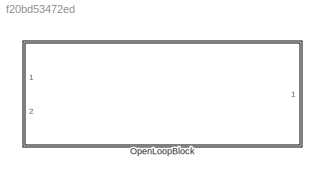
MODEL slx_f20bd53472ed
KIND library
CONFIG AbsTol = auto
CONFIG EnableMultiTasking = off
CONFIG FixedStep = auto
CONFIG MaxStep = auto
CONFIG MinStep = auto
CONFIG RelTol = 1e-3
CONFIG SampleTimeConstraint = Unconstrained
CONFIG SolverName = VariableStepAuto
CONFIG StartTime = 0.0
CONFIG StopTime = 10.0
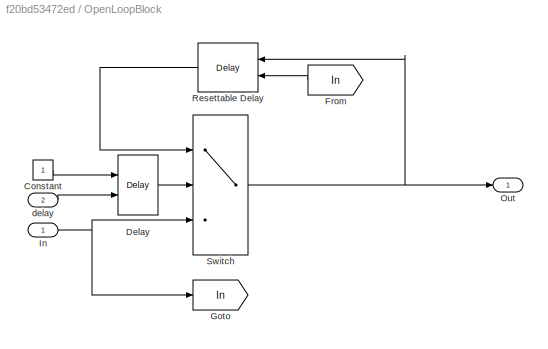
BLOCK [SubSystem] OpenLoopBlock
  Ports = [2, 1]
  RequestExecContextInheritance = off
BLOCK [Constant] OpenLoopBlock/Constant
BLOCK [Delay] OpenLoopBlock/Delay
  DelayLength = 1
  DelayLengthSource = Input port
  InitialCondition = 0
  InputPortMap = u0,p1
  Ports = [2, 1]
BLOCK [From] OpenLoopBlock/From
  GotoTag = In
  NameLocation = top
BLOCK [Goto] OpenLoopBlock/Goto
  GotoTag = In
BLOCK [Inport] OpenLoopBlock/In
BLOCK [Outport] OpenLoopBlock/Out
BLOCK [Delay] OpenLoopBlock/Resettable Delay
  DelayLength = 1
  InitialConditionSource = Input port
  InputPortMap = u0,p4
  NameLocation = top
  Ports = [2, 1]
BLOCK [Switch] OpenLoopBlock/Switch
  Criteria = u2 ~= 0
  InputSameDT = off
  SaturateOnIntegerOverflow = off
BLOCK [Inport] OpenLoopBlock/delay
  Port = 2
LINE OpenLoopBlock/Constant:1 -> OpenLoopBlock/Delay:1
LINE OpenLoopBlock/Delay:1 -> OpenLoopBlock/Switch:2
LINE OpenLoopBlock/From:1 -> OpenLoopBlock/Resettable Delay:2
NET OpenLoopBlock/In:1 -> OpenLoopBlock/Goto:1, OpenLoopBlock/Switch:3
LINE OpenLoopBlock/Resettable Delay:1 -> OpenLoopBlock/Switch:1
NET OpenLoopBlock/Switch:1 -> OpenLoopBlock/Out:1, OpenLoopBlock/Resettable Delay:1
LINE OpenLoopBlock/delay:1 -> OpenLoopBlock/Delay:2
note: NET lines group one-source signal fan-out (src -> all destinations, sorted); 1:1 wires keep LINE
